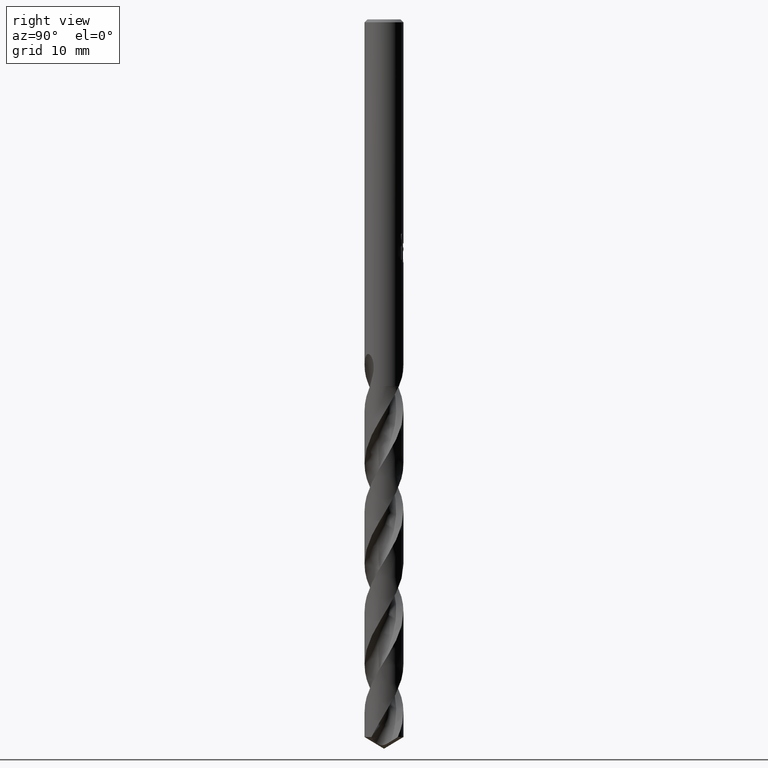
[diagram: clean part render]
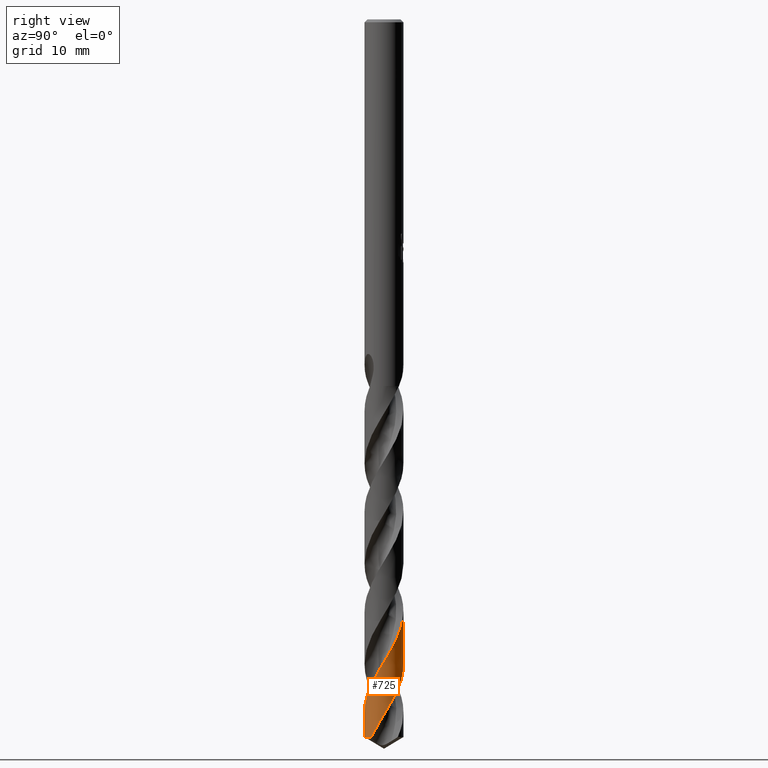
[diagram: same view with one face highlighted and labeled with its STEP entity id]
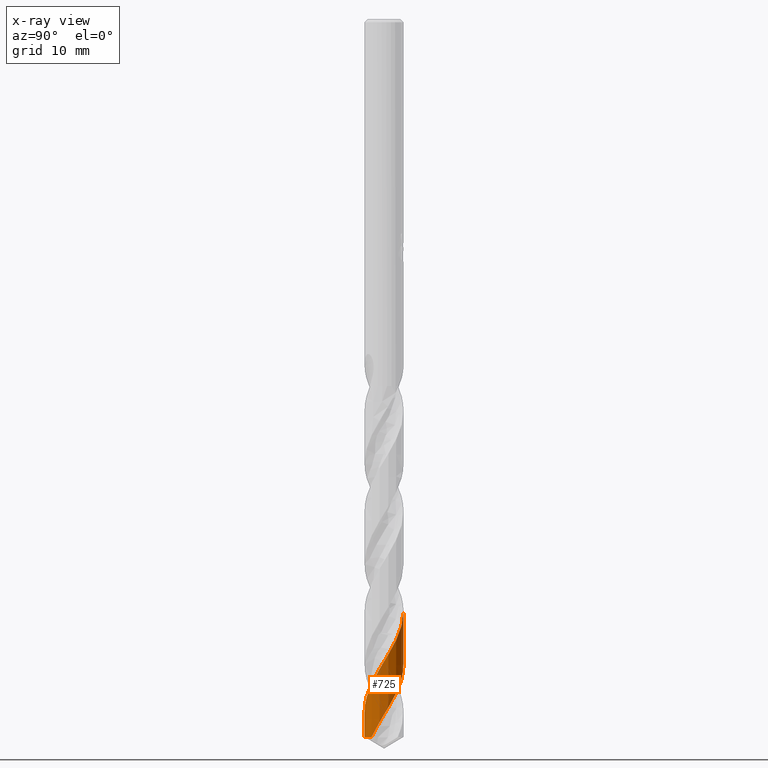
[diagram: x-ray of the same camera — body ghosted, the highlighted face saturated]
A machine part, right view. The second image highlights one B-rep face of the part: STEP entity #725.
The next image is the same camera in x-ray: the body ghosted, the highlighted face saturated — about 0% of this face is hidden behind the body in this view.
In plain terms, the highlighted conical surface has half-angle 0 deg.
Its self-contained STEP definition (entity closure, byte-faithful):
#379=VERTEX_POINT('',#889);
#475=EDGE_CURVE('',#633,#651,#994,.T.);
#559=EDGE_CURVE('',#633,#691,#1090,.T.);
#583=EDGE_CURVE('',#699,#651,#1115,.T.);
#633=VERTEX_POINT('',#1170);
#651=VERTEX_POINT('',#1189);
#685=EDGE_CURVE('',#691,#379,#1225,.T.);
#691=VERTEX_POINT('',#1231);
#693=EDGE_CURVE('',#699,#379,#1233,.T.);
#699=VERTEX_POINT('',#1239);
#725=ADVANCED_FACE('',(#1265),#1266,.T.);
#889=CARTESIAN_POINT('',(2.12124563073958E-015,-1.9999928706615,-71.224710278644));
#994=B_SPLINE_CURVE_WITH_KNOTS('',3,(#4901,#4902,#4903,#4904,#4905,#4906,#4907,#4908,#4909,#4910,#4911,#4912,#4913,#4914,#4915,#4916,#4917,#4918,#4919,#4920,#4921,#4922,#4923,#4924,#4925,#4926,#4927,#4928,#4929,#4930,#4931,#4932,#4933,#4934,#4935,#4936,#4937,#4938,#4939,#4940,#4941,#4942,#4943,#4944,#4945,#4946,#4947,#4948,#4949,#4950,#4951,#4952,#4953,#4954,#4955,#4956,#4957,#4958,#4959,#4960,#4961,#4962,#4963,#4964,#4965,#4966,#4967,#4968,#4969,#4970,#4971,#4972,#4973,#4974,#4975,#4976,#4977,#4978,#4979,#4980,#4981,#4982,#4983,#4984,#4985,#4986,#4987,#4988,#4989,#4990,#4991,#4992,#4993,#4994,#4995,#4996,#4997,#4998,#4999,#5000,#5001,#5002,#5003,#5004,#5005,#5006,#5007,#5008,#5009,#5010,#5011,#5012,#5013,#5014,#5015,#5016,#5017,#5018,#5019,#5020,#5021,#5022,#5023,#5024,#5025,#5026,#5027,#5028,#5029,#5030,#5031,#5032,#5033,#5034,#5035,#5036,#5037,#5038,#5039,#5040,#5041,#5042,#5043,#5044,#5045,#5046,#5047,#5048,#5049,#5050),.UNSPECIFIED.,.F.,.F.,(4,2,2,2,2,2,2,2,2,2,2,2,2,2,2,2,2,2,2,2,2,2,2,2,2,2,2,2,2,2,2,2,2,2,2,2,2,2,2,2,2,2,2,2,2,2,2,2,2,2,2,2,2,2,2,2,2,2,2,2,2,2,2,2,2,2,2,2,2,2,2,2,2,2,4),(0.0,1.24032553367717,1.48286990308435,2.52081263988143,3.03416551151751,3.7067150771978,4.37725410139759,5.04963319374877,5.72220382598896,6.39421809957316,7.0685272201784,7.71075144711009,8.38863586460276,8.96143486317903,9.30309674062927,9.85797483069164,10.5321031199709,11.2044464998229,11.8781582223579,12.5524224952547,13.2255487581604,13.9016356530227,14.5399740434817,15.2198484206729,16.3337343276656,16.418735931333,17.12678036967,17.4689965583306,18.0795132859178,18.7906737461406,19.4670603694128,20.1789444173331,20.8268841922226,21.5027041041389,21.6718335157197,22.1858097850656,22.8606464767517,23.5332968584232,24.2077081036338,24.8822942773219,25.5563707707468,26.2327958211727,26.8787106916516,27.558558938174,28.1358328581958,28.4785198207013,29.0302340404093,29.7063604835993,30.3807837475729,31.0565031843787,31.7328482195114,32.4069922693239,33.0852376499847,33.7237277964735,34.4058359127364,35.5198399760516,35.6035217842308,36.3178193856403,36.6614516566689,37.2766530049141,37.8674163796059,38.135559224295,38.6417295707758,39.5059597669778,39.9620863886518,40.3068479673806,41.3785984691532,41.7771278663897,42.3469178256904,42.5898874144054,42.7951334378945,43.0087672956323,43.327740777938,44.2267512811181,45.9238746924032),.UNSPECIFIED.);
#1090=CIRCLE('',#6016,2.0);
#1115=LINE('',#6245,#6246);
#1170=CARTESIAN_POINT('',(1.53262371792478,-1.28493756239532,-73.7982787619449));
#1189=CARTESIAN_POINT('',(-6.00625741301625E-015,1.99997933514574,-66.3386220658795));
#1225=LINE('',#7303,#7304);
#1231=CARTESIAN_POINT('',(2.45689245891918E-016,-2.0,-73.7982787619449));
#1233=B_SPLINE_CURVE_WITH_KNOTS('',3,(#7314,#7315,#7316,#7317,#7318,#7319,#7320,#7321,#7322,#7323,#7324,#7325,#7326,#7327,#7328,#7329,#7330,#7331,#7332,#7333,#7334,#7335,#7336,#7337,#7338,#7339,#7340,#7341,#7342,#7343,#7344,#7345,#7346,#7347,#7348,#7349,#7350,#7351,#7352,#7353,#7354,#7355,#7356,#7357,#7358,#7359,#7360,#7361,#7362,#7363,#7364,#7365,#7366,#7367,#7368,#7369,#7370,#7371,#7372,#7373,#7374,#7375,#7376,#7377,#7378,#7379,#7380,#7381,#7382,#7383,#7384,#7385,#7386,#7387,#7388,#7389,#7390,#7391,#7392,#7393,#7394,#7395,#7396,#7397,#7398,#7399,#7400,#7401,#7402,#7403,#7404,#7405,#7406,#7407,#7408,#7409,#7410,#7411,#7412,#7413,#7414,#7415,#7416,#7417,#7418,#7419,#7420,#7421,#7422,#7423,#7424,#7425,#7426,#7427,#7428,#7429,#7430,#7431,#7432,#7433,#7434,#7435,#7436,#7437,#7438,#7439,#7440,#7441,#7442,#7443,#7444,#7445,#7446,#7447,#7448,#7449,#7450,#7451,#7452,#7453,#7454,#7455,#7456,#7457,#7458,#7459,#7460,#7461,#7462,#7463,#7464,#7465,#7466,#7467,#7468,#7469,#7470,#7471,#7472,#7473,#7474,#7475,#7476,#7477,#7478,#7479,#7480,#7481,#7482,#7483,#7484,#7485,#7486,#7487),.UNSPECIFIED.,.F.,.F.,(4,2,2,2,2,2,2,2,2,2,2,2,2,2,2,2,2,2,2,2,2,2,2,2,2,2,2,2,2,2,2,2,2,2,2,2,2,2,2,2,2,2,2,2,2,2,2,2,2,2,2,2,2,2,2,2,2,2,2,2,2,2,2,2,2,2,2,2,2,2,2,2,2,2,2,2,2,2,2,2,2,2,2,2,2,2,4),(0.0,0.10324201492185,0.143162014822113,0.165246334766473,0.179587706489972,0.190170327259584,0.197981629445189,0.203754393021112,0.20802632582969,0.211176849546779,0.213497862862162,0.215211222921959,0.216477929992509,0.443872005220367,0.499196434962649,0.529789794190778,0.555639821271776,0.586475484903963,0.642949156799228,0.716459952345308,1.01709583298375,1.18889651264387,1.33721944955247,1.48647960079191,2.17475847723128,2.5083856989308,2.9778841605627,3.69869521697535,4.15438633684289,4.78738466345146,5.11867138405736,5.4726349872234,6.63738341271215,6.7036099436711,7.7033369828835,8.51823316420899,9.20950523416354,9.50486771752993,10.1577989549978,10.4883587037671,10.8074932939098,11.4281248425274,11.7592845104653,12.1120320336756,13.2798828503166,13.3462401235011,14.3485829110055,15.1498209425592,15.8030570257783,16.120102162128,16.7424675639511,17.0927645034569,17.4305080852107,18.0334593472246,18.3840883972708,18.7447887024758,19.9047496364828,19.9719513257378,20.9596082822213,21.8058741559047,22.4972764033458,22.7857452521471,23.450756598587,24.1443508532453,24.7933319639576,25.4647516929889,26.1042225055537,26.7974863614254,27.447662533188,28.1126525833699,28.7443285139187,29.4388920805537,30.0720924319341,30.7663477954125,31.4027201193643,32.0963144681338,32.7402301755031,33.3965000611225,34.0676522633018,34.72363286659,35.3956130792043,36.05132357505,36.7308346986914,37.8079135778081,38.218575510019,38.9243588925512,41.1130755417579),.UNSPECIFIED.);
#1239=CARTESIAN_POINT('',(2.98655000969136E-015,1.99996425693149,-60.8956462548979));
#1265=FACE_OUTER_BOUND('',#7895,.T.);
#1266=CONICAL_SURFACE('',#7896,1.99995,2.77021518558259E-006);
#4901=CARTESIAN_POINT('',(1.53262371792478,-1.28493756239532,-73.7982787619449));
#4902=CARTESIAN_POINT('',(1.66988290302873,-1.12121860058722,-73.4443152377203));
#4903=CARTESIAN_POINT('',(1.78017755426661,-0.936419367713748,-73.0976128081715));
#4904=CARTESIAN_POINT('',(1.87461281617409,-0.698262375092074,-72.6755401035056));
#4905=CARTESIAN_POINT('',(1.88882639474976,-0.658850319669311,-72.6063935207929));
#4906=CARTESIAN_POINT('',(1.95740806062995,-0.448113983376986,-72.2415819856214));
#4907=CARTESIAN_POINT('',(1.98971257295234,-0.27066228339422,-71.9496929401447));
#4908=CARTESIAN_POINT('',(2.00196227885518,-0.00260362107316001,-71.5078805770982));
#4909=CARTESIAN_POINT('',(2.00010904015178,0.086367432453378,-71.361006431475));
#4910=CARTESIAN_POINT('',(1.98211279739531,0.291197953301194,-71.0230432676329));
#4911=CARTESIAN_POINT('',(1.96176581000794,0.406268886913643,-70.8324900637739));
#4912=CARTESIAN_POINT('',(1.90130867264583,0.631283873227344,-70.4498761688807));
#4913=CARTESIAN_POINT('',(1.86143019655305,0.740635690236047,-70.2580113361568));
#4914=CARTESIAN_POINT('',(1.76299524529269,0.951515285116294,-69.8754425132669));
#4915=CARTESIAN_POINT('',(1.70456362605712,1.05262267814571,-69.6849954073066));
#4916=CARTESIAN_POINT('',(1.57066590597331,1.24360917252461,-69.3020253857403));
#4917=CARTESIAN_POINT('',(1.49557789778711,1.33295192972654,-69.1096743147306));
#4918=CARTESIAN_POINT('',(1.33080528954984,1.49747944874147,-68.7268049176578));
#4919=CARTESIAN_POINT('',(1.24139701258355,1.57240169897121,-68.5365531899364));
#4920=CARTESIAN_POINT('',(1.0501099664329,1.70612757731308,-68.1534126862162));
#4921=CARTESIAN_POINT('',(0.948755339476359,1.76448634138209,-67.9606890601941));
#4922=CARTESIAN_POINT('',(0.742175662111705,1.86049864134361,-67.586025011242));
#4923=CARTESIAN_POINT('',(0.637606706031243,1.89888731869717,-67.4042273994246));
#4924=CARTESIAN_POINT('',(0.417028272085897,1.95954390744103,-67.0288260647397));
#4925=CARTESIAN_POINT('',(0.301398060845497,1.98060643377576,-66.8353027387219));
#4926=CARTESIAN_POINT('',(0.086216824238818,2.00057026407779,-66.4796673691002));
#4927=CARTESIAN_POINT('',(-0.0129864177432981,2.00239631550263,-66.3174903776577));
#4928=CARTESIAN_POINT('',(-0.171123570206324,1.99352270849433,-66.057728912661));
#4929=CARTESIAN_POINT('',(-0.229965642114338,1.98759033363679,-65.9607863785238));
#4930=CARTESIAN_POINT('',(-0.383285071724889,1.96524767045912,-65.70590711008));
#4931=CARTESIAN_POINT('',(-0.477049602210062,1.9446203424049,-65.5474817155914));
#4932=CARTESIAN_POINT('',(-0.680891638569698,1.88411630302863,-65.1980035395806));
#4933=CARTESIAN_POINT('',(-0.789605062347542,1.84120689841114,-65.0074110063221));
#4934=CARTESIAN_POINT('',(-0.99809348599762,1.73702393182589,-64.6246702385176));
#4935=CARTESIAN_POINT('',(-1.09733159941906,1.67608909002789,-64.4327081016625));
#4936=CARTESIAN_POINT('',(-1.28432946171191,1.53751745942821,-64.0500830009828));
#4937=CARTESIAN_POINT('',(-1.37171638883503,1.46009452076128,-63.8596784548031));
#4938=CARTESIAN_POINT('',(-1.53214102988155,1.29075318558134,-63.4766945324646));
#4939=CARTESIAN_POINT('',(-1.60471614498909,1.19930916915445,-63.284286275939));
#4940=CARTESIAN_POINT('',(-1.73300543103652,1.00503658929579,-62.9014653345413));
#4941=CARTESIAN_POINT('',(-1.78853873012093,0.902531548694432,-62.7113183844582));
#4942=CARTESIAN_POINT('',(-1.88139047560528,0.68841784979573,-62.3282113433923));
#4943=CARTESIAN_POINT('',(-1.91835746261711,0.577406702118769,-62.1354150595403));
#4944=CARTESIAN_POINT('',(-1.97098798269197,0.356675344854541,-61.7621853178357));
#4945=CARTESIAN_POINT('',(-1.98766305011074,0.247473488249651,-61.581876374717));
#4946=CARTESIAN_POINT('',(-2.00331658122829,0.0200772677222323,-61.2078593689587));
#4947=CARTESIAN_POINT('',(-2.00102034984808,-0.0975198522562657,-61.0142238782541));
#4948=CARTESIAN_POINT('',(-1.96792793479947,-0.404942612419577,-60.5053260665679));
#4949=CARTESIAN_POINT('',(-1.9200091921307,-0.591687467100875,-60.1939704752225));
#4950=CARTESIAN_POINT('',(-1.84079881073029,-0.781996689911969,-59.8537020576903));
#4951=CARTESIAN_POINT('',(-1.83504008148703,-0.795416575014489,-59.8295746594754));
#4952=CARTESIAN_POINT('',(-1.77979104658039,-0.920360571958409,-59.6041332531483));
#4953=CARTESIAN_POINT('',(-1.7202656027967,-1.02739164783888,-59.404137459039));
#4954=CARTESIAN_POINT('',(-1.61772990542723,-1.17740936359233,-59.1061490967326));
#4955=CARTESIAN_POINT('',(-1.58219489709098,-1.22474025057796,-59.0091694364718));
#4956=CARTESIAN_POINT('',(-1.47767398259061,-1.35182493234665,-58.7386762607305));
#4957=CARTESIAN_POINT('',(-1.40442002708068,-1.42778144848367,-58.5645984637855));
#4958=CARTESIAN_POINT('',(-1.23343268488182,-1.57910262977159,-58.1893376952149));
#4959=CARTESIAN_POINT('',(-1.13412378488352,-1.65187340006805,-57.9886986712838));
#4960=CARTESIAN_POINT('',(-0.928534925364801,-1.77519031203564,-57.5948303762937));
#4961=CARTESIAN_POINT('',(-0.823344846807389,-1.82635557263029,-57.4019887540028));
#4962=CARTESIAN_POINT('',(-0.599332774581791,-1.91199841337487,-57.007912179958));
#4963=CARTESIAN_POINT('',(-0.48067585850889,-1.94521987143683,-56.8071130202161));
#4964=CARTESIAN_POINT('',(-0.249640647125265,-1.98746345255361,-56.4211565879574));
#4965=CARTESIAN_POINT('',(-0.138167968469237,-1.99830887542531,-56.2364571808398));
#4966=CARTESIAN_POINT('',(0.0904431098975169,-2.00131095741142,-55.860731246843));
#4967=CARTESIAN_POINT('',(0.207074886929873,-1.99262412297718,-55.6700124015661));
#4968=CARTESIAN_POINT('',(0.35114088802966,-1.96909885280619,-55.4302550045804));
#4969=CARTESIAN_POINT('',(0.379846909577377,-1.96376249379414,-55.382267343774));
#4970=CARTESIAN_POINT('',(0.495179091397291,-1.93970343942003,-55.1883124049331));
#4971=CARTESIAN_POINT('',(0.580743130939445,-1.91583478841039,-55.0417276978915));
#4972=CARTESIAN_POINT('',(0.774561897521241,-1.84755233214184,-54.7039834922745));
#4973=CARTESIAN_POINT('',(0.880999503876134,-1.79923471665133,-54.5133623761469));
#4974=CARTESIAN_POINT('',(1.08395791678197,-1.68473991508594,-54.1306703605396));
#4975=CARTESIAN_POINT('',(1.17997070660632,-1.61893583822494,-53.9387892539402));
#4976=CARTESIAN_POINT('',(1.35976871148612,-1.47118310343874,-53.5562155622516));
#4977=CARTESIAN_POINT('',(1.44317700513762,-1.38946363585988,-53.3657809832348));
#4978=CARTESIAN_POINT('',(1.59488489059987,-1.21231763978411,-52.982837013019));
#4979=CARTESIAN_POINT('',(1.66275845737645,-1.11739196025998,-52.7905005625434));
#4980=CARTESIAN_POINT('',(1.7811710665495,-0.91691623518243,-52.4076482767296));
#4981=CARTESIAN_POINT('',(1.83152384966926,-0.811697318594665,-52.2173973846075));
#4982=CARTESIAN_POINT('',(1.91352109563628,-0.593177589259298,-51.834247896493));
#4983=CARTESIAN_POINT('',(1.94486373579884,-0.480494091701651,-51.6415151442173));
#4984=CARTESIAN_POINT('',(1.98658178636293,-0.25623750300281,-51.2663536323253));
#4985=CARTESIAN_POINT('',(1.99778441197309,-0.145111780873606,-51.0840770982927));
#4986=CARTESIAN_POINT('',(2.00162447847777,0.0838924370485774,-50.7082223254131));
#4987=CARTESIAN_POINT('',(1.99324242064888,0.20110133524933,-50.5147281215715));
#4988=CARTESIAN_POINT('',(1.95894535467172,0.414921484412407,-50.1583549050747));
#4989=CARTESIAN_POINT('',(1.93587828588203,0.511905014135554,-49.9954169133546));
#4990=CARTESIAN_POINT('',(1.88767570628542,0.663260829728577,-49.7348895129809));
#4991=CARTESIAN_POINT('',(1.86724705308708,0.718753157991359,-49.6379517807061));
#4992=CARTESIAN_POINT('',(1.80767531897489,0.860856240315623,-49.384451207341));
#4993=CARTESIAN_POINT('',(1.76473255033151,0.945781432285371,-49.2274048990895));
#4994=CARTESIAN_POINT('',(1.65593262326853,1.12748012888403,-48.8793073490338));
#4995=CARTESIAN_POINT('',(1.58737337136798,1.22212182241108,-48.6887245979179));
#4996=CARTESIAN_POINT('',(1.43467735683704,1.39820031008087,-48.3059801889534));
#4997=CARTESIAN_POINT('',(1.35100057594379,1.47919878031213,-48.1140042070991));
#4998=CARTESIAN_POINT('',(1.17032908355346,1.62591795233392,-47.7313723913947));
#4999=CARTESIAN_POINT('',(1.07363463244324,1.69133321950132,-47.5409752858489));
#5000=CARTESIAN_POINT('',(0.869757444310244,1.80467235363136,-47.1579876167813));
#5001=CARTESIAN_POINT('',(0.763148567923711,1.85226371670507,-46.9655679869379));
#5002=CARTESIAN_POINT('',(0.543264023205415,1.92822415021492,-46.5830232335276));
#5003=CARTESIAN_POINT('',(0.430354553140729,1.95652935727787,-46.393159515294));
#5004=CARTESIAN_POINT('',(0.200053239638202,1.99332676220215,-46.0103103255452));
#5005=CARTESIAN_POINT('',(0.0833219332999421,2.00159294475586,-45.8174848919295));
#5006=CARTESIAN_POINT('',(-0.143272769010007,1.99780754451005,-45.4447286172832));
#5007=CARTESIAN_POINT('',(-0.252891435562154,1.98691847958552,-45.2649169199783));
#5008=CARTESIAN_POINT('',(-0.476806772557401,1.94580629020466,-44.8913584726865));
#5009=CARTESIAN_POINT('',(-0.590198897959021,1.91444039513073,-44.6976848241756));
#5010=CARTESIAN_POINT('',(-0.879321295725929,1.80640864541084,-44.1896660779415));
#5011=CARTESIAN_POINT('',(-1.04790951613199,1.71406592619787,-43.8791901367071));
#5012=CARTESIAN_POINT('',(-1.21210483924981,1.59080871236935,-43.5403058935986));
#5013=CARTESIAN_POINT('',(-1.22346834026337,1.58208587539551,-43.5166342371421));
#5014=CARTESIAN_POINT('',(-1.33114206259576,1.49757631639545,-43.2907158051563));
#5015=CARTESIAN_POINT('',(-1.42057103329604,1.41307656793304,-43.0897964034413));
#5016=CARTESIAN_POINT('',(-1.54094315720449,1.27618819947576,-42.7908766524863));
#5017=CARTESIAN_POINT('',(-1.57801434854403,1.2300486216152,-42.6939008607366));
#5018=CARTESIAN_POINT('',(-1.67551902849186,1.09703493058777,-42.4228080435601));
#5019=CARTESIAN_POINT('',(-1.73115573091598,1.00694974559821,-42.2481423949371));
#5020=CARTESIAN_POINT('',(-1.8258312600621,0.822382175856831,-41.9071646383919));
#5021=CARTESIAN_POINT('',(-1.8652743740776,0.728521824369656,-41.7408541502439));
#5022=CARTESIAN_POINT('',(-1.9120116337229,0.588205263117977,-41.4981322220785));
#5023=CARTESIAN_POINT('',(-1.92506526257494,0.543955421563075,-41.4223962517503));
#5024=CARTESIAN_POINT('',(-1.95828199385245,0.41513100619968,-41.2034018884628));
#5025=CARTESIAN_POINT('',(-1.97450505007773,0.329497531064191,-41.0596182805579));
#5026=CARTESIAN_POINT('',(-2.00318011284814,0.0951963930748269,-40.6718137189719));
#5027=CARTESIAN_POINT('',(-2.00468943215374,-0.0539761338349697,-40.4295627084442));
#5028=CARTESIAN_POINT('',(-1.98179524538612,-0.279748922427241,-40.055724419339));
#5029=CARTESIAN_POINT('',(-1.96932632106547,-0.357123117531541,-39.9260686960093));
#5030=CARTESIAN_POINT('',(-1.93944222125917,-0.491634366348357,-39.6992061416707));
#5031=CARTESIAN_POINT('',(-1.92398528684143,-0.54904092188549,-39.6016981697498));
#5032=CARTESIAN_POINT('',(-1.84989304097749,-0.782152995153294,-39.2010084599572));
#5033=CARTESIAN_POINT('',(-1.77847647089302,-0.92342718678804,-38.9482615761633));
#5034=CARTESIAN_POINT('',(-1.68869655034483,-1.07244503191324,-38.6587127883185));
#5035=CARTESIAN_POINT('',(-1.66335328806265,-1.11127980681972,-38.5800798005745));
#5036=CARTESIAN_POINT('',(-1.59975323470202,-1.20193315058233,-38.3870769165719));
#5037=CARTESIAN_POINT('',(-1.57152989259099,-1.23702296665411,-38.3037026163934));
#5038=CARTESIAN_POINT('',(-1.55543494319128,-1.25709485608238,-38.2572782976898));
#5039=CARTESIAN_POINT('',(-1.5505201888811,-1.26315312928158,-38.2434661170191));
#5040=CARTESIAN_POINT('',(-1.54125292019543,-1.27443708925322,-38.2180982621688));
#5041=CARTESIAN_POINT('',(-1.53693335202798,-1.27964384288069,-38.2065300424814));
#5042=CARTESIAN_POINT('',(-1.52795647574195,-1.29035078567617,-38.1830134677105));
#5043=CARTESIAN_POINT('',(-1.52329425160187,-1.29585227557268,-38.171073281027));
#5044=CARTESIAN_POINT('',(-1.51145373940354,-1.30966837178752,-38.1414317416673));
#5045=CARTESIAN_POINT('',(-1.50417290966542,-1.31802722106875,-38.1238040635023));
#5046=CARTESIAN_POINT('',(-1.47560972225713,-1.35025563507572,-38.0569341829372));
#5047=CARTESIAN_POINT('',(-1.4530245223366,-1.37460052814139,-38.0086835474176));
#5048=CARTESIAN_POINT('',(-1.38292656042567,-1.4461689804318,-37.8719470271144));
#5049=CARTESIAN_POINT('',(-1.33174044567226,-1.49385536971646,-37.7870563067385));
#5050=CARTESIAN_POINT('',(-1.27440158741468,-1.54126592754024,-37.705));
#6016=AXIS2_PLACEMENT_3D('',#8325,#8326,#8327);
#6245=CARTESIAN_POINT('',(-2.44147172605263E-016,1.99995,-55.7491393809724));
#6246=VECTOR('',#8343,1.0);
#7303=CARTESIAN_POINT('',(2.45683122860149E-016,-1.99995,-55.7491393809724));
#7304=VECTOR('',#8461,1.0);
#7314=CARTESIAN_POINT('',(-1.39008397358236,1.43779922513228,-37.705));
#7315=CARTESIAN_POINT('',(-1.37786387304508,1.4496139009197,-37.7349233406765));
#7316=CARTESIAN_POINT('',(-1.36544726101673,1.46131775669886,-37.7648875674481));
#7317=CARTESIAN_POINT('',(-1.34790380961554,1.47743041328215,-37.8063976777762));
#7318=CARTESIAN_POINT('',(-1.34298074532742,1.4819070765542,-37.8179595516369));
#7319=CARTESIAN_POINT('',(-1.33527584457405,1.48884303028525,-37.8359105301383));
#7320=CARTESIAN_POINT('',(-1.33252121573322,1.49130899266656,-37.8423001422807));
#7321=CARTESIAN_POINT('',(-1.32795874908968,1.49537053870721,-37.8528354250453));
#7322=CARTESIAN_POINT('',(-1.32615789369841,1.49696786794885,-37.8569816537881));
#7323=CARTESIAN_POINT('',(-1.32301970911608,1.49974125789572,-37.8641854415951));
#7324=CARTESIAN_POINT('',(-1.32168472246254,1.50091789560266,-37.8672432335046));
#7325=CARTESIAN_POINT('',(-1.31935972465901,1.50296159865576,-37.8725568785046));
#7326=CARTESIAN_POINT('',(-1.31837097566751,1.50382899612402,-37.8748129234976));
#7327=CARTESIAN_POINT('',(-1.31664899025375,1.50533663109153,-37.8787355608754));
#7328=CARTESIAN_POINT('',(-1.31591643365281,1.50597705699039,-37.8804022842548));
#7329=CARTESIAN_POINT('',(-1.31464039365942,1.50709097115708,-37.883302016494));
#7330=CARTESIAN_POINT('',(-1.31409727777544,1.50756456540231,-37.8845351075975));
#7331=CARTESIAN_POINT('',(-1.31315286226536,1.50838719212944,-37.8866773746049));
#7332=CARTESIAN_POINT('',(-1.3127517643496,1.50873628464232,-37.8875866005978));
#7333=CARTESIAN_POINT('',(-1.31205476421543,1.50934242478062,-37.8891655369258));
#7334=CARTESIAN_POINT('',(-1.31175897147532,1.50959950577166,-37.8898352764804));
#7335=CARTESIAN_POINT('',(-1.31124460306793,1.51004629100548,-37.8909993464301));
#7336=CARTESIAN_POINT('',(-1.31102608636137,1.51023601349434,-37.8914936932862));
#7337=CARTESIAN_POINT('',(-1.31064589611697,1.51056596086123,-37.8923534790761));
#7338=CARTESIAN_POINT('',(-1.31048425448797,1.51070619576637,-37.892718927296));
#7339=CARTESIAN_POINT('',(-1.28129847125122,1.53601860054671,-37.9586860025736));
#7340=CARTESIAN_POINT('',(-1.25167303417711,1.56028381316677,-38.0224431824875));
#7341=CARTESIAN_POINT('',(-1.21267629814028,1.59031866220887,-38.102735449506));
#7342=CARTESIAN_POINT('',(-1.20498416929351,1.59615528855513,-38.1184117578327));
#7343=CARTESIAN_POINT('',(-1.19292946554544,1.60516445319335,-38.1427526747499));
#7344=CARTESIAN_POINT('',(-1.18861889906511,1.60835910120036,-38.1514124956294));
#7345=CARTESIAN_POINT('',(-1.18063031945476,1.61422980149509,-38.1673858125703));
#7346=CARTESIAN_POINT('',(-1.17695932650643,1.61690837941958,-38.1746969346148));
#7347=CARTESIAN_POINT('',(-1.16888092800938,1.622760693873,-38.1907265650816));
#7348=CARTESIAN_POINT('',(-1.1644700026001,1.6259288751538,-38.1994406655626));
#7349=CARTESIAN_POINT('',(-1.1519322546603,1.63485687875078,-38.2241122048704));
#7350=CARTESIAN_POINT('',(-1.14377388161465,1.64057511716476,-38.2400506801315));
#7351=CARTESIAN_POINT('',(-1.12488308904505,1.65360602332469,-38.2767503740918));
#7352=CARTESIAN_POINT('',(-1.11401016462855,1.66095291812436,-38.297716229194));
#7353=CARTESIAN_POINT('',(-1.05758689687318,1.69825548397748,-38.4063795584286));
#7354=CARTESIAN_POINT('',(-1.01135940535658,1.72615981090844,-38.4944612573147));
#7355=CARTESIAN_POINT('',(-0.937651301988944,1.76673612872642,-38.6325833051741));
#7356=CARTESIAN_POINT('',(-0.910548755920801,1.78085451332534,-38.6829007721116));
#7357=CARTESIAN_POINT('',(-0.859540047973003,1.80596144119329,-38.7766066496938));
#7358=CARTESIAN_POINT('',(-0.835676122482891,1.81712738459998,-38.8200526399864));
#7359=CARTESIAN_POINT('',(-0.787366671320648,1.83857825587027,-38.9071631414255));
#7360=CARTESIAN_POINT('',(-0.762913051376098,1.84885956149855,-38.9508576800758));
#7361=CARTESIAN_POINT('',(-0.624531805056522,1.90382487289959,-39.1960965368136));
#7362=CARTESIAN_POINT('',(-0.506800012628536,1.9385060806723,-39.3969235923436));
#7363=CARTESIAN_POINT('',(-0.328189437646002,1.97368843417001,-39.6958828156998));
#7364=CARTESIAN_POINT('',(-0.269404764678592,1.98256751487425,-39.7934153197359));
#7365=CARTESIAN_POINT('',(-0.127180398616313,1.99760882006173,-40.0284005837105));
#7366=CARTESIAN_POINT('',(-0.0436280604535424,2.0011731752127,-40.1657284033345));
#7367=CARTESIAN_POINT('',(0.167993907780861,1.99695729966722,-40.5141557931301));
#7368=CARTESIAN_POINT('',(0.295696256047139,1.98208824587813,-40.7247244808009));
#7369=CARTESIAN_POINT('',(0.500507626705972,1.93796661307778,-41.0689370024443));
#7370=CARTESIAN_POINT('',(0.578701564725732,1.91606979667384,-41.2019739491942));
#7371=CARTESIAN_POINT('',(0.761800592141357,1.85256556406208,-41.5205624667447));
#7372=CARTESIAN_POINT('',(0.864958772644184,1.80670701174129,-41.7056687951822));
#7373=CARTESIAN_POINT('',(1.01538408180771,1.72398409813625,-41.9878643715856));
#7374=CARTESIAN_POINT('',(1.06579077129045,1.69328666446702,-42.0847463363836));
#7375=CARTESIAN_POINT('',(1.16711339278926,1.62526032572608,-42.2852540504546));
#7376=CARTESIAN_POINT('',(1.2177401274994,1.58768068127266,-42.3887067742956));
#7377=CARTESIAN_POINT('',(1.42693854450244,1.41650256130473,-42.8332403881292));
#7378=CARTESIAN_POINT('',(1.56607599142473,1.26099668774288,-43.1723364632782));
#7379=CARTESIAN_POINT('',(1.68523787578751,1.07692947994238,-43.5325685334575));
#7380=CARTESIAN_POINT('',(1.69155982751033,1.06697203593564,-43.5519461432565));
#7381=CARTESIAN_POINT('',(1.79189577484051,0.905803981786329,-43.8639515426309));
#7382=CARTESIAN_POINT('',(1.86541961436463,0.7427031109946,-44.1559091944788));
#7383=CARTESIAN_POINT('',(1.95789511297429,0.432901795596037,-44.6871080488215));
#7384=CARTESIAN_POINT('',(1.9841334718793,0.289723172291325,-44.9250273020109));
#7385=CARTESIAN_POINT('',(2.00357975877757,0.0222985738471517,-45.3660734006475));
#7386=CARTESIAN_POINT('',(2.00116130917599,-0.101054495610372,-45.5679529158143));
#7387=CARTESIAN_POINT('',(1.98151953603845,-0.275754338001979,-45.8567589686675));
#7388=CARTESIAN_POINT('',(1.97358024278006,-0.327777251541968,-45.943165622514));
#7389=CARTESIAN_POINT('',(1.94154966456995,-0.493552452223244,-46.2208517704645));
#7390=CARTESIAN_POINT('',(1.90957870873251,-0.605585242592824,-46.411855208356));
#7391=CARTESIAN_POINT('',(1.84701357557033,-0.76922551108967,-46.6998167221791));
#7392=CARTESIAN_POINT('',(1.82356210852651,-0.823281257354248,-46.7965301263068));
#7393=CARTESIAN_POINT('',(1.77283676591111,-0.92735482939844,-46.9867289486411));
#7394=CARTESIAN_POINT('',(1.74576165127155,-0.977368977731826,-47.0800715798074));
#7395=CARTESIAN_POINT('',(1.65989288516889,-1.1210165499942,-47.3552905168721));
#7396=CARTESIAN_POINT('',(1.59540632658741,-1.21103715680785,-47.5369134020661));
#7397=CARTESIAN_POINT('',(1.48559471050045,-1.34022408307677,-47.8156414981019));
#7398=CARTESIAN_POINT('',(1.44540874021096,-1.38347033226466,-47.9125494923706));
#7399=CARTESIAN_POINT('',(1.3585674982448,-1.46900038110453,-48.1127927342108));
#7400=CARTESIAN_POINT('',(1.31173833803636,-1.51096220291819,-48.2159489522609));
#7401=CARTESIAN_POINT('',(1.10173858821168,-1.68201192602339,-48.6613162435371));
#7402=CARTESIAN_POINT('',(0.920861909898059,-1.7874759346089,-49.0015392162535));
#7403=CARTESIAN_POINT('',(0.715918950229747,-1.86743920748291,-49.3629632442328));
#7404=CARTESIAN_POINT('',(0.704864418065186,-1.87163977731178,-49.3823926271731));
#7405=CARTESIAN_POINT('',(0.526234991225429,-1.93770963303504,-49.6954115952818));
#7406=CARTESIAN_POINT('',(0.351085326310735,-1.97697017891419,-49.9883070789151));
#7407=CARTESIAN_POINT('',(0.0307341427413471,-2.00479523761476,-50.5166155755239));
#7408=CARTESIAN_POINT('',(-0.112440367441342,-2.0018676148061,-50.7507179742068));
#7409=CARTESIAN_POINT('',(-0.369439535395569,-1.96896035625224,-51.1769057806803));
#7410=CARTESIAN_POINT('',(-0.483404957756013,-1.94412884807088,-51.3678687631447));
#7411=CARTESIAN_POINT('',(-0.648584063562885,-1.89269355606967,-51.6520754399242));
#7412=CARTESIAN_POINT('',(-0.701797590779599,-1.87361335710438,-51.7448597826804));
#7413=CARTESIAN_POINT('',(-0.856826312517588,-1.81049843908254,-52.0201258583545));
#7414=CARTESIAN_POINT('',(-0.955898666274608,-1.76020562649164,-52.2023532826556));
#7415=CARTESIAN_POINT('',(-1.10343378835843,-1.66916028498874,-52.4873488020459));
#7416=CARTESIAN_POINT('',(-1.15501515172527,-1.63389320977873,-52.5899037331003));
#7417=CARTESIAN_POINT('',(-1.25294400101257,-1.55997625879999,-52.7914664913515));
#7418=CARTESIAN_POINT('',(-1.2993324959125,-1.52155389081296,-52.8903009922614));
#7419=CARTESIAN_POINT('',(-1.42348572294609,-1.40890241815112,-53.1659754556126));
#7420=CARTESIAN_POINT('',(-1.49712626645427,-1.33039003679015,-53.3425659545515));
#7421=CARTESIAN_POINT('',(-1.6030544070606,-1.19745534142138,-53.6220146147277));
#7422=CARTESIAN_POINT('',(-1.63970115435033,-1.14676417202475,-53.7246851042347));
#7423=CARTESIAN_POINT('',(-1.70912409235636,-1.04058298685604,-53.9330999312367));
#7424=CARTESIAN_POINT('',(-1.74169597430477,-0.985093732493738,-54.038647323802));
#7425=CARTESIAN_POINT('',(-1.86748566483352,-0.745003797288777,-54.4843331092814));
#7426=CARTESIAN_POINT('',(-1.93450191363072,-0.547996614045157,-54.8225335733391));
#7427=CARTESIAN_POINT('',(-1.97217257745922,-0.332374376222638,-55.1821385754193));
#7428=CARTESIAN_POINT('',(-1.97412896170817,-0.320550197263934,-55.2018278560728));
#7429=CARTESIAN_POINT('',(-2.00316965306871,-0.13467231151171,-55.5110048830983));
#7430=CARTESIAN_POINT('',(-2.00725312772504,0.0422540734419936,-55.7998732609263));
#7431=CARTESIAN_POINT('',(-1.97168449909116,0.36750912566432,-56.3374570687439));
#7432=CARTESIAN_POINT('',(-1.93833318570297,0.515202844223023,-56.5848076355763));
#7433=CARTESIAN_POINT('',(-1.84819023673662,0.774079747102755,-57.0356894418433));
#7434=CARTESIAN_POINT('',(-1.79696707119959,0.88653521705074,-57.2378701781469));
#7435=CARTESIAN_POINT('',(-1.71010775018373,1.03826797306663,-57.5250882557012));
#7436=CARTESIAN_POINT('',(-1.68283367755307,1.08191335082552,-57.6096027704806));
#7437=CARTESIAN_POINT('',(-1.58725826655988,1.2224941931783,-57.8891871297915));
#7438=CARTESIAN_POINT('',(-1.5119909191481,1.31445113171481,-58.083966829659));
#7439=CARTESIAN_POINT('',(-1.34243612906639,1.48761677360366,-58.4822912170874));
#7440=CARTESIAN_POINT('',(-1.24788597819407,1.56777094264352,-58.6849068806706));
#7441=CARTESIAN_POINT('',(-1.05175679139247,1.70500238556083,-59.0786301507127));
#7442=CARTESIAN_POINT('',(-0.951340521240434,1.76300754343684,-59.2687236718065));
#7443=CARTESIAN_POINT('',(-0.737912380318811,1.86270690288486,-59.6558752610359));
#7444=CARTESIAN_POINT('',(-0.625085021686817,1.90353554267095,-59.8520643174976));
#7445=CARTESIAN_POINT('',(-0.399044458724678,1.96306265776557,-60.2365274704356));
#7446=CARTESIAN_POINT('',(-0.286461843708823,1.98262667443902,-60.4238649638815));
#7447=CARTESIAN_POINT('',(-0.0495683474360777,2.00317207748276,-60.8146708728214));
#7448=CARTESIAN_POINT('',(0.0743460096448547,2.00240219928664,-61.0172259005106));
#7449=CARTESIAN_POINT('',(0.312746128504393,1.97876106689919,-61.4112711274125));
#7450=CARTESIAN_POINT('',(0.426948933582154,1.95730405712684,-61.6017455317668));
#7451=CARTESIAN_POINT('',(0.652951957834556,1.89409685832284,-61.9874286723612));
#7452=CARTESIAN_POINT('',(0.764118433311016,1.85204199443932,-62.1817803403029));
#7453=CARTESIAN_POINT('',(0.972295769936145,1.75134454670073,-62.5621378716033));
#7454=CARTESIAN_POINT('',(1.06941492675154,1.69379301142289,-62.7472353590762));
#7455=CARTESIAN_POINT('',(1.26210037915087,1.55638869324165,-63.136209113561));
#7456=CARTESIAN_POINT('',(1.3560744118803,1.47522640832075,-63.3391702564428));
#7457=CARTESIAN_POINT('',(1.5201823696101,1.30448792318247,-63.728683350026));
#7458=CARTESIAN_POINT('',(1.59143063572943,1.21655588973442,-63.9142412368848));
#7459=CARTESIAN_POINT('',(1.72445775672134,1.02053450323901,-64.3036040603916));
#7460=CARTESIAN_POINT('',(1.78433354133131,0.911803992226251,-64.5064940747314));
#7461=CARTESIAN_POINT('',(1.87906895737971,0.694180299445012,-64.8968806648298));
#7462=CARTESIAN_POINT('',(1.91544718394592,0.586400503519495,-65.0833792130355));
#7463=CARTESIAN_POINT('',(1.97195319495255,0.355854754080867,-65.473509803763));
#7464=CARTESIAN_POINT('',(1.99018709588796,0.233183084785858,-65.6762277636836));
#7465=CARTESIAN_POINT('',(2.003268165375,-0.00505523600456972,-66.0686677558131));
#7466=CARTESIAN_POINT('',(1.99967470334137,-0.120117201275481,-66.2573819420516));
#7467=CARTESIAN_POINT('',(1.97249152267928,-0.350599860115998,-66.6388055254987));
#7468=CARTESIAN_POINT('',(1.94858124329638,-0.465471159741864,-66.8306780287214));
#7469=CARTESIAN_POINT('',(1.88018865371477,-0.692210977697883,-67.2201842121705));
#7470=CARTESIAN_POINT('',(1.83537174507334,-0.803551195855709,-67.4168885992196));
#7471=CARTESIAN_POINT('',(1.72754826746275,-1.01450658774287,-67.8062538887885));
#7472=CARTESIAN_POINT('',(1.66521491738914,-1.11386479877846,-67.9980610344815));
#7473=CARTESIAN_POINT('',(1.52219530724557,-1.30278076099942,-68.387764060769));
#7474=CARTESIAN_POINT('',(1.4413502139252,-1.3917056750104,-68.5847288025418));
#7475=CARTESIAN_POINT('',(1.26678844439921,-1.5520624877662,-68.9742951385722));
#7476=CARTESIAN_POINT('',(1.17381724085589,-1.62351249013276,-69.1660430901329));
#7477=CARTESIAN_POINT('',(0.97291011162129,-1.75159981624968,-69.557915146998));
#7478=CARTESIAN_POINT('',(0.864915719440639,-1.80737280257458,-69.7570952492413));
#7479=CARTESIAN_POINT('',(0.57432183231627,-1.92538310098191,-70.272555237127));
#7480=CARTESIAN_POINT('',(0.386658934708911,-1.9716525813025,-70.5870118599603));
#7481=CARTESIAN_POINT('',(0.122398312685478,-1.99758854349863,-71.0236503644088));
#7482=CARTESIAN_POINT('',(0.0490910539789719,-2.00073492018698,-71.1440559632574));
#7483=CARTESIAN_POINT('',(-0.15029493022676,-1.99831817956296,-71.471635662875));
#7484=CARTESIAN_POINT('',(-0.275849436199579,-1.98487801268362,-71.6782290046135));
#7485=CARTESIAN_POINT('',(-0.781889281737279,-1.88178954438411,-72.5278705966519));
#7486=CARTESIAN_POINT('',(-1.1336344524178,-1.69341154462608,-73.1562032779538));
#7487=CARTESIAN_POINT('',(-1.41070437765753,-1.41771406103554,-73.7982787619449));
#7895=EDGE_LOOP('',(#8470,#8471,#8472,#8473,#8474));
#7896=AXIS2_PLACEMENT_3D('',#8475,#8476,#8477);
#8325=CARTESIAN_POINT('',(0.0,0.0,-73.7982787619449));
#8326=DIRECTION('',(0.0,0.0,-1.0));
#8327=DIRECTION('',(0.0,1.0,0.0));
#8343=DIRECTION('',(-3.39242311771534E-022,2.77021518557905E-006,-0.999999999996163));
#8461=DIRECTION('',(-3.39242311771534E-022,2.77021518557905E-006,0.999999999996163));
#8470=ORIENTED_EDGE('',*,*,#583,.F.);
#8471=ORIENTED_EDGE('',*,*,#693,.T.);
#8472=ORIENTED_EDGE('',*,*,#685,.F.);
#8473=ORIENTED_EDGE('',*,*,#559,.F.);
#8474=ORIENTED_EDGE('',*,*,#475,.T.);
#8475=CARTESIAN_POINT('',(0.0,0.0,-55.7491393809724));
#8476=DIRECTION('',(0.0,-0.0,-1.0));
#8477=DIRECTION('',(0.0,1.0,0.0));